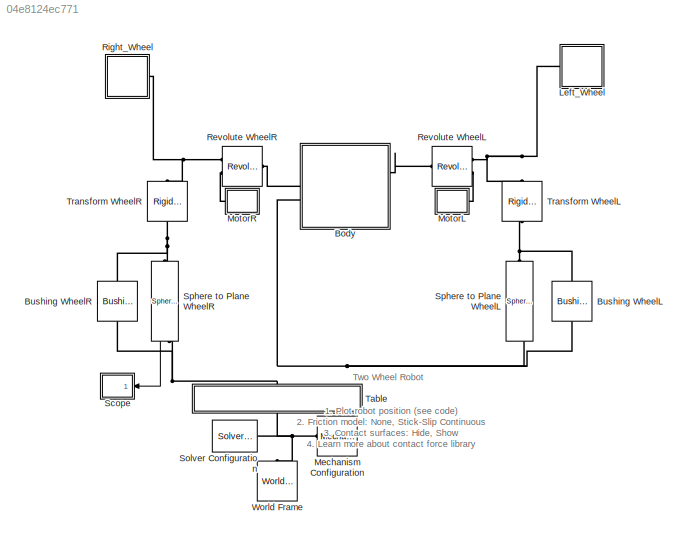
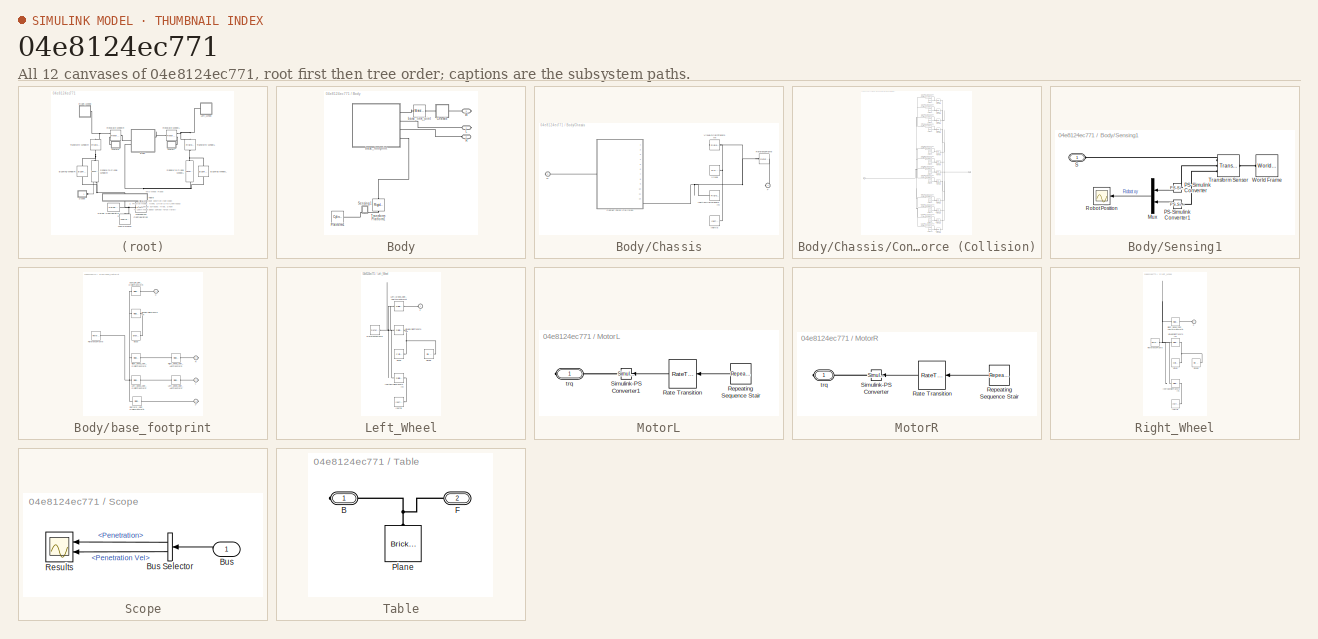
[diagram: thumbnail index - all 12 canvases of the model, root first then tree order]
MODEL slx_04e8124ec771
KIND model
CONFIG AbsTol = 1e-5
CONFIG EnableMultiTasking = on
CONFIG FixedStep = 1e-3
CONFIG MaxStep = 0.01
CONFIG MinStep = auto
CONFIG RelTol = 1e-4
CONFIG SampleTimeConstraint = Unconstrained
CONFIG Solver = ode23t
CONFIG SolverName = ode23t
CONFIG StartFcn = tic;
CONFIG StartTime = 0.0
CONFIG StopFcn = Elapsed_Sim_Time = toc;\ndisp(['Elapsed Sim Time = ' num2str(Elapsed_Sim_Time)]);\n
CONFIG StopTime = 13
WORKSPACE source: MATLAB code (in-file)
WORKSPACE code: whl.rad = 0.025;
WORKSPACE code: whl.thickness = 0.005;
WORKSPACE code: axle.length = 0.2;
WORKSPACE code: axle.radius = 0.005;
WORKSPACE code: platform.radius = 0.15;
WORKSPACE code: platform.thickness = 0.005;
WORKSPACE code: platform.offset = -0.01;
WORKSPACE code: bumper.rad = platform.offset+whl.rad;
WORKSPACE code: table.length = 1;
WORKSPACE code: table.thickness = 0.01;
WORKSPACE code: tableWhl.contact.k = 1e3;
WORKSPACE code: tableWhl.contact.b = 1e2;
WORKSPACE code: steel.density = 8000; %kg/m^3
WORKSPACE code: start_pos.x = -0.2;
WORKSPACE code: start_pos.y = 0.2;
WORKSPACE l_whl_trq = [0 0 0 0.5 0 0 0 -0.5 1.0 0 0 0 -1.0 0.5 0 0 0 -0.5 -1.5 0 0 0 1.5].'*0.0005
WORKSPACE r_whl_trq = [0 0 0 2.0 0 0 0 -2.0 1.0 0 0 0 -1.0 1.0 0 0 0 -1.0 -1.5 0 0 0 1.5].'*0.0005
BLOCK [SubSystem] Body
  PortSchema = {"entries":[{"content":{"sides":[{"content":{"connectorIds":["LConn1"]},"type":"ConnectorPlacement.EquallySpacedRectSide","uuid":"fa89fc61-4746-4874-a10e-0f1ff4eac7ad"},{"content":{"connectorIds":["RConn1"],"side":"RIGHT"},"type":"ConnectorPlacement.EquallySpacedRectSide","uuid":"79f4ddb8-3849-4594-b888-ec6795b585fc"},{"content":{"connectorIds":[],"side":"TOP"},"type":"ConnectorPlacement.EquallySp...<+399ch>
  Ports = [0, 0, 0, 0, 0, 1, 2]
  RequestExecContextInheritance = off
  Tag = CustomStyle
BLOCK [SubSystem] Body/Chassis
  Ports = [0, 0, 0, 0, 0, 1, 1]
  RequestExecContextInheritance = off
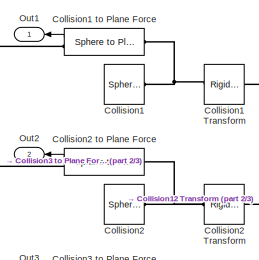
[diagram: Body/Chassis/Contact Force (Collision) - part 1/3, top center region]
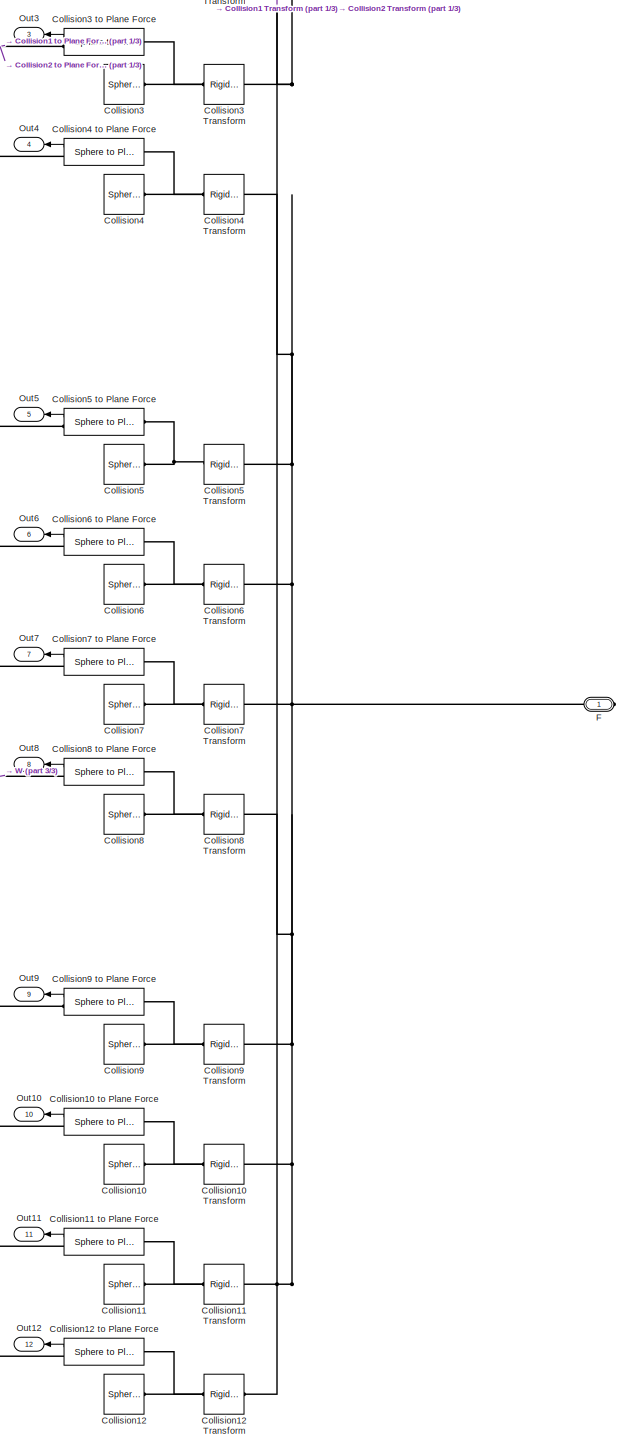
[diagram: Body/Chassis/Contact Force (Collision) - part 2/3, right side, full height]
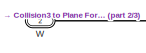
[diagram: Body/Chassis/Contact Force (Collision) - part 3/3, middle left region]
BLOCK [SubSystem] Body/Chassis/Contact Force (Collision)
  Ports = [0, 12, 0, 0, 0, 1, 1]
  RequestExecContextInheritance = off
BLOCK [Reference] Body/Chassis/Contact Force (Collision)/Collision1  REF=sm_lib/Body Elements/Spherical Solid
  NameLocation = left
  Ports = [0, 0, 0, 0, 0, 0, 1]
  SourceBlock = sm_lib/Body Elements/Spherical Solid
  SourceProductBaseCode = MS
  SourceType = Spherical Solid
BLOCK [Reference] Body/Chassis/Contact Force (Collision)/Collision1 Transform  REF=sm_lib/Frames and
Transforms/Rigid
Transform
  NameLocation = top
  Ports = [0, 0, 0, 0, 0, 1, 1]
  SourceBlock = sm_lib/Frames and\nTransforms/Rigid\nTransform
  SourceProductBaseCode = MS
  SourceType = Rigid\nTransform
BLOCK [Reference] Body/Chassis/Contact Force (Collision)/Collision1 to Plane Force  REF=Contact_Forces_Lib/3D/Sphere to Plane Force
  NameLocation = left
  Ports = [0, 1, 0, 0, 0, 1, 1]
  SourceBlock = Contact_Forces_Lib/3D/Sphere to Plane Force
  SourceProductName = Simscape Multibody Contact Forces Library
  SourceType = Sphere to Plane Force
BLOCK [Reference] Body/Chassis/Contact Force (Collision)/Collision10  REF=sm_lib/Body Elements/Spherical Solid
  NameLocation = left
  Ports = [0, 0, 0, 0, 0, 0, 1]
  SourceBlock = sm_lib/Body Elements/Spherical Solid
  SourceProductBaseCode = MS
  SourceType = Spherical Solid
BLOCK [Reference] Body/Chassis/Contact Force (Collision)/Collision10 Transform  REF=sm_lib/Frames and
Transforms/Rigid
Transform
  NameLocation = top
  Ports = [0, 0, 0, 0, 0, 1, 1]
  SourceBlock = sm_lib/Frames and\nTransforms/Rigid\nTransform
  SourceProductBaseCode = MS
  SourceType = Rigid\nTransform
BLOCK [Reference] Body/Chassis/Contact Force (Collision)/Collision10 to Plane Force  REF=Contact_Forces_Lib/3D/Sphere to Plane Force
  NameLocation = left
  Ports = [0, 1, 0, 0, 0, 1, 1]
  SourceBlock = Contact_Forces_Lib/3D/Sphere to Plane Force
  SourceProductName = Simscape Multibody Contact Forces Library
  SourceType = Sphere to Plane Force
BLOCK [Reference] Body/Chassis/Contact Force (Collision)/Collision11  REF=sm_lib/Body Elements/Spherical Solid
  NameLocation = left
  Ports = [0, 0, 0, 0, 0, 0, 1]
  SourceBlock = sm_lib/Body Elements/Spherical Solid
  SourceProductBaseCode = MS
  SourceType = Spherical Solid
BLOCK [Reference] Body/Chassis/Contact Force (Collision)/Collision11 Transform  REF=sm_lib/Frames and
Transforms/Rigid
Transform
  NameLocation = top
  Ports = [0, 0, 0, 0, 0, 1, 1]
  SourceBlock = sm_lib/Frames and\nTransforms/Rigid\nTransform
  SourceProductBaseCode = MS
  SourceType = Rigid\nTransform
BLOCK [Reference] Body/Chassis/Contact Force (Collision)/Collision11 to Plane Force  REF=Contact_Forces_Lib/3D/Sphere to Plane Force
  NameLocation = left
  Ports = [0, 1, 0, 0, 0, 1, 1]
  SourceBlock = Contact_Forces_Lib/3D/Sphere to Plane Force
  SourceProductName = Simscape Multibody Contact Forces Library
  SourceType = Sphere to Plane Force
BLOCK [Reference] Body/Chassis/Contact Force (Collision)/Collision12  REF=sm_lib/Body Elements/Spherical Solid
  NameLocation = left
  Ports = [0, 0, 0, 0, 0, 0, 1]
  SourceBlock = sm_lib/Body Elements/Spherical Solid
  SourceProductBaseCode = MS
  SourceType = Spherical Solid
BLOCK [Reference] Body/Chassis/Contact Force (Collision)/Collision12 Transform  REF=sm_lib/Frames and
Transforms/Rigid
Transform
  NameLocation = top
  Ports = [0, 0, 0, 0, 0, 1, 1]
  SourceBlock = sm_lib/Frames and\nTransforms/Rigid\nTransform
  SourceProductBaseCode = MS
  SourceType = Rigid\nTransform
BLOCK [Reference] Body/Chassis/Contact Force (Collision)/Collision12 to Plane Force  REF=Contact_Forces_Lib/3D/Sphere to Plane Force
  NameLocation = left
  Ports = [0, 1, 0, 0, 0, 1, 1]
  SourceBlock = Contact_Forces_Lib/3D/Sphere to Plane Force
  SourceProductName = Simscape Multibody Contact Forces Library
  SourceType = Sphere to Plane Force
BLOCK [Reference] Body/Chassis/Contact Force (Collision)/Collision2  REF=sm_lib/Body Elements/Spherical Solid
  NameLocation = left
  Ports = [0, 0, 0, 0, 0, 0, 1]
  SourceBlock = sm_lib/Body Elements/Spherical Solid
  SourceProductBaseCode = MS
  SourceType = Spherical Solid
BLOCK [Reference] Body/Chassis/Contact Force (Collision)/Collision2 Transform  REF=sm_lib/Frames and
Transforms/Rigid
Transform
  NameLocation = top
  Ports = [0, 0, 0, 0, 0, 1, 1]
  SourceBlock = sm_lib/Frames and\nTransforms/Rigid\nTransform
  SourceProductBaseCode = MS
  SourceType = Rigid\nTransform
BLOCK [Reference] Body/Chassis/Contact Force (Collision)/Collision2 to Plane Force  REF=Contact_Forces_Lib/3D/Sphere to Plane Force
  NameLocation = left
  Ports = [0, 1, 0, 0, 0, 1, 1]
  SourceBlock = Contact_Forces_Lib/3D/Sphere to Plane Force
  SourceProductName = Simscape Multibody Contact Forces Library
  SourceType = Sphere to Plane Force
BLOCK [Reference] Body/Chassis/Contact Force (Collision)/Collision3  REF=sm_lib/Body Elements/Spherical Solid
  NameLocation = left
  Ports = [0, 0, 0, 0, 0, 0, 1]
  SourceBlock = sm_lib/Body Elements/Spherical Solid
  SourceProductBaseCode = MS
  SourceType = Spherical Solid
BLOCK [Reference] Body/Chassis/Contact Force (Collision)/Collision3 Transform  REF=sm_lib/Frames and
Transforms/Rigid
Transform
  NameLocation = top
  Ports = [0, 0, 0, 0, 0, 1, 1]
  SourceBlock = sm_lib/Frames and\nTransforms/Rigid\nTransform
  SourceProductBaseCode = MS
  SourceType = Rigid\nTransform
BLOCK [Reference] Body/Chassis/Contact Force (Collision)/Collision3 to Plane Force  REF=Contact_Forces_Lib/3D/Sphere to Plane Force
  NameLocation = left
  Ports = [0, 1, 0, 0, 0, 1, 1]
  SourceBlock = Contact_Forces_Lib/3D/Sphere to Plane Force
  SourceProductName = Simscape Multibody Contact Forces Library
  SourceType = Sphere to Plane Force
BLOCK [Reference] Body/Chassis/Contact Force (Collision)/Collision4  REF=sm_lib/Body Elements/Spherical Solid
  NameLocation = left
  Ports = [0, 0, 0, 0, 0, 0, 1]
  SourceBlock = sm_lib/Body Elements/Spherical Solid
  SourceProductBaseCode = MS
  SourceType = Spherical Solid
BLOCK [Reference] Body/Chassis/Contact Force (Collision)/Collision4 Transform  REF=sm_lib/Frames and
Transforms/Rigid
Transform
  NameLocation = top
  Ports = [0, 0, 0, 0, 0, 1, 1]
  SourceBlock = sm_lib/Frames and\nTransforms/Rigid\nTransform
  SourceProductBaseCode = MS
  SourceType = Rigid\nTransform
BLOCK [Reference] Body/Chassis/Contact Force (Collision)/Collision4 to Plane Force  REF=Contact_Forces_Lib/3D/Sphere to Plane Force
  NameLocation = left
  Ports = [0, 1, 0, 0, 0, 1, 1]
  SourceBlock = Contact_Forces_Lib/3D/Sphere to Plane Force
  SourceProductName = Simscape Multibody Contact Forces Library
  SourceType = Sphere to Plane Force
BLOCK [Reference] Body/Chassis/Contact Force (Collision)/Collision5  REF=sm_lib/Body Elements/Spherical Solid
  NameLocation = left
  Ports = [0, 0, 0, 0, 0, 0, 1]
  SourceBlock = sm_lib/Body Elements/Spherical Solid
  SourceProductBaseCode = MS
  SourceType = Spherical Solid
BLOCK [Reference] Body/Chassis/Contact Force (Collision)/Collision5 Transform  REF=sm_lib/Frames and
Transforms/Rigid
Transform
  NameLocation = top
  Ports = [0, 0, 0, 0, 0, 1, 1]
  SourceBlock = sm_lib/Frames and\nTransforms/Rigid\nTransform
  SourceProductBaseCode = MS
  SourceType = Rigid\nTransform
BLOCK [Reference] Body/Chassis/Contact Force (Collision)/Collision5 to Plane Force  REF=Contact_Forces_Lib/3D/Sphere to Plane Force
  NameLocation = left
  Ports = [0, 1, 0, 0, 0, 1, 1]
  SourceBlock = Contact_Forces_Lib/3D/Sphere to Plane Force
  SourceProductName = Simscape Multibody Contact Forces Library
  SourceType = Sphere to Plane Force
BLOCK [Reference] Body/Chassis/Contact Force (Collision)/Collision6  REF=sm_lib/Body Elements/Spherical Solid
  NameLocation = left
  Ports = [0, 0, 0, 0, 0, 0, 1]
  SourceBlock = sm_lib/Body Elements/Spherical Solid
  SourceProductBaseCode = MS
  SourceType = Spherical Solid
BLOCK [Reference] Body/Chassis/Contact Force (Collision)/Collision6 Transform  REF=sm_lib/Frames and
Transforms/Rigid
Transform
  NameLocation = top
  Ports = [0, 0, 0, 0, 0, 1, 1]
  SourceBlock = sm_lib/Frames and\nTransforms/Rigid\nTransform
  SourceProductBaseCode = MS
  SourceType = Rigid\nTransform
BLOCK [Reference] Body/Chassis/Contact Force (Collision)/Collision6 to Plane Force  REF=Contact_Forces_Lib/3D/Sphere to Plane Force
  NameLocation = left
  Ports = [0, 1, 0, 0, 0, 1, 1]
  SourceBlock = Contact_Forces_Lib/3D/Sphere to Plane Force
  SourceProductName = Simscape Multibody Contact Forces Library
  SourceType = Sphere to Plane Force
BLOCK [Reference] Body/Chassis/Contact Force (Collision)/Collision7  REF=sm_lib/Body Elements/Spherical Solid
  NameLocation = left
  Ports = [0, 0, 0, 0, 0, 0, 1]
  SourceBlock = sm_lib/Body Elements/Spherical Solid
  SourceProductBaseCode = MS
  SourceType = Spherical Solid
BLOCK [Reference] Body/Chassis/Contact Force (Collision)/Collision7 Transform  REF=sm_lib/Frames and
Transforms/Rigid
Transform
  NameLocation = top
  Ports = [0, 0, 0, 0, 0, 1, 1]
  SourceBlock = sm_lib/Frames and\nTransforms/Rigid\nTransform
  SourceProductBaseCode = MS
  SourceType = Rigid\nTransform
BLOCK [Reference] Body/Chassis/Contact Force (Collision)/Collision7 to Plane Force  REF=Contact_Forces_Lib/3D/Sphere to Plane Force
  NameLocation = left
  Ports = [0, 1, 0, 0, 0, 1, 1]
  SourceBlock = Contact_Forces_Lib/3D/Sphere to Plane Force
  SourceProductName = Simscape Multibody Contact Forces Library
  SourceType = Sphere to Plane Force
BLOCK [Reference] Body/Chassis/Contact Force (Collision)/Collision8  REF=sm_lib/Body Elements/Spherical Solid
  NameLocation = left
  Ports = [0, 0, 0, 0, 0, 0, 1]
  SourceBlock = sm_lib/Body Elements/Spherical Solid
  SourceProductBaseCode = MS
  SourceType = Spherical Solid
BLOCK [Reference] Body/Chassis/Contact Force (Collision)/Collision8 Transform  REF=sm_lib/Frames and
Transforms/Rigid
Transform
  NameLocation = top
  Ports = [0, 0, 0, 0, 0, 1, 1]
  SourceBlock = sm_lib/Frames and\nTransforms/Rigid\nTransform
  SourceProductBaseCode = MS
  SourceType = Rigid\nTransform
BLOCK [Reference] Body/Chassis/Contact Force (Collision)/Collision8 to Plane Force  REF=Contact_Forces_Lib/3D/Sphere to Plane Force
  NameLocation = left
  Ports = [0, 1, 0, 0, 0, 1, 1]
  SourceBlock = Contact_Forces_Lib/3D/Sphere to Plane Force
  SourceProductName = Simscape Multibody Contact Forces Library
  SourceType = Sphere to Plane Force
BLOCK [Reference] Body/Chassis/Contact Force (Collision)/Collision9  REF=sm_lib/Body Elements/Spherical Solid
  NameLocation = left
  Ports = [0, 0, 0, 0, 0, 0, 1]
  SourceBlock = sm_lib/Body Elements/Spherical Solid
  SourceProductBaseCode = MS
  SourceType = Spherical Solid
BLOCK [Reference] Body/Chassis/Contact Force (Collision)/Collision9 Transform  REF=sm_lib/Frames and
Transforms/Rigid
Transform
  NameLocation = top
  Ports = [0, 0, 0, 0, 0, 1, 1]
  SourceBlock = sm_lib/Frames and\nTransforms/Rigid\nTransform
  SourceProductBaseCode = MS
  SourceType = Rigid\nTransform
BLOCK [Reference] Body/Chassis/Contact Force (Collision)/Collision9 to Plane Force  REF=Contact_Forces_Lib/3D/Sphere to Plane Force
  NameLocation = left
  Ports = [0, 1, 0, 0, 0, 1, 1]
  SourceBlock = Contact_Forces_Lib/3D/Sphere to Plane Force
  SourceProductName = Simscape Multibody Contact Forces Library
  SourceType = Sphere to Plane Force
BLOCK [PMIOPort] Body/Chassis/Contact Force (Collision)/F
  Side = Right
BLOCK [Outport] Body/Chassis/Contact Force (Collision)/Out1
BLOCK [Outport] Body/Chassis/Contact Force (Collision)/Out10
  Port = 10
BLOCK [Outport] Body/Chassis/Contact Force (Collision)/Out11
  Port = 11
BLOCK [Outport] Body/Chassis/Contact Force (Collision)/Out12
  Port = 12
BLOCK [Outport] Body/Chassis/Contact Force (Collision)/Out2
  Port = 2
BLOCK [Outport] Body/Chassis/Contact Force (Collision)/Out3
  Port = 3
BLOCK [Outport] Body/Chassis/Contact Force (Collision)/Out4
  Port = 4
BLOCK [Outport] Body/Chassis/Contact Force (Collision)/Out5
  Port = 5
BLOCK [Outport] Body/Chassis/Contact Force (Collision)/Out6
  Port = 6
BLOCK [Outport] Body/Chassis/Contact Force (Collision)/Out7
  Port = 7
BLOCK [Outport] Body/Chassis/Contact Force (Collision)/Out8
  Port = 8
BLOCK [Outport] Body/Chassis/Contact Force (Collision)/Out9
  Port = 9
BLOCK [PMIOPort] Body/Chassis/Contact Force (Collision)/W
  Port = 2
  Side = Left
BLOCK [PMIOPort] Body/Chassis/F
  NameLocation = top
  Side = Left
BLOCK [Reference] Body/Chassis/Inertia  REF=sm_lib/Body Elements/Inertia
  Ports = [0, 0, 0, 0, 0, 0, 1]
  SourceBlock = sm_lib/Body Elements/Inertia
  SourceProductBaseCode = MS
  SourceType = Inertia
BLOCK [Reference] Body/Chassis/InertiaOriginTransform  REF=sm_lib/Frames and
Transforms/Rigid
Transform
  Commented = on
  Ports = [0, 0, 0, 0, 0, 1, 1]
  SourceBlock = sm_lib/Frames and\nTransforms/Rigid\nTransform
  SourceProductBaseCode = MS
  SourceType = Rigid\nTransform
BLOCK [Reference] Body/Chassis/ReferenceFrame  REF=sm_lib/Frames and
Transforms/Reference
Frame
  NameLocation = top
  Ports = [0, 0, 0, 0, 0, 0, 1]
  SourceBlock = sm_lib/Frames and\nTransforms/Reference\nFrame
  SourceProductBaseCode = MS
  SourceType = Reference\nFrame
BLOCK [Reference] Body/Chassis/Visual  REF=sm_lib/Body Elements/File Solid
  Ports = [0, 0, 0, 0, 0, 0, 1]
  SourceBlock = sm_lib/Body Elements/File Solid
  SourceProductBaseCode = MS
  SourceType = File Solid
BLOCK [Reference] Body/Chassis/VisualOriginTransform  REF=sm_lib/Frames and
Transforms/Rigid
Transform
  Ports = [0, 0, 0, 0, 0, 1, 1]
  SourceBlock = sm_lib/Frames and\nTransforms/Rigid\nTransform
  SourceProductBaseCode = MS
  SourceType = Rigid\nTransform
BLOCK [PMIOPort] Body/Chassis/W
  Port = 2
  Side = Right
BLOCK [PMIOPort] Body/L
  NameLocation = top
  Side = Right
BLOCK [Reference] Body/Platform1  REF=sm_lib/Body Elements/Cylindrical Solid
  Commented = on
  Ports = [0, 0, 0, 0, 0, 0, 1]
  SourceBlock = sm_lib/Body Elements/Cylindrical Solid
  SourceProductBaseCode = MS
  SourceType = Cylindrical Solid
BLOCK [PMIOPort] Body/R
  Port = 2
  Side = Left
BLOCK [SubSystem] Body/Sensing1
  Commented = on
  NameLocation = left
  Ports = [0, 0, 0, 0, 0, 1]
  RequestExecContextInheritance = off
BLOCK [Mux] Body/Sensing1/Mux
  DisplayOption = bar
  Inputs = 2
  NameLocation = top
  Ports = [2, 1]
BLOCK [Reference] Body/Sensing1/PS-Simulink Converter  REF=nesl_utility/PS-Simulink
Converter
  NameLocation = top
  Ports = [0, 1, 0, 0, 0, 1]
  SourceBlock = nesl_utility/PS-Simulink\nConverter
  SourceProductBaseCode = SS
  SourceType = PS-Simulink\nConverter
BLOCK [Reference] Body/Sensing1/PS-Simulink Converter1  REF=nesl_utility/PS-Simulink
Converter
  NameLocation = top
  Ports = [0, 1, 0, 0, 0, 1]
  SourceBlock = nesl_utility/PS-Simulink\nConverter
  SourceProductBaseCode = SS
  SourceType = PS-Simulink\nConverter
BLOCK [Scope] Body/Sensing1/Robot Position
  Floating = off
  NumInputPorts = 1
  Ports = [1]
  ScopeSpecificationString = C++SS(StrPVP('Location','[691, 76, 1015, 315]'),StrPVP('Open','off'),MxPVP('AxesTitles',54,'struct(''axes1'',''%<SignalLabel>'')'),MxPVP('ScopeGraphics',57,'struct(''FigureColor'',''[0.501960784313725 0.501960784313725 0.501960784313725]'',''AxesColor'',''[0 0 0]'',''AxesTickColor'',''[1 1 1]'',''LineColors'',''[1 1 0;1 0 1;0 1 1;1 0 0;0 1 0;0 0 1]'',''LineStyles'',''-|-|-|-|-|-'',''LineWidths'','...<+318ch>
BLOCK [PMIOPort] Body/Sensing1/S
  Side = Left
BLOCK [Reference] Body/Sensing1/Transform Sensor  REF=sm_lib/Frames and
Transforms/Transform
Sensor
  Ports = [0, 0, 0, 0, 0, 1, 3]
  SourceBlock = sm_lib/Frames and\nTransforms/Transform\nSensor
  SourceProductBaseCode = MS
  SourceType = Transform\nSensor
BLOCK [Reference] Body/Sensing1/World Frame  REF=sm_lib/Frames and
Transforms/World Frame
  NameLocation = top
  Ports = [0, 0, 0, 0, 0, 0, 1]
  SourceBlock = sm_lib/Frames and\nTransforms/World Frame
  SourceProductBaseCode = MS
  SourceType = World Frame
BLOCK [Reference] Body/Transform Platform1  REF=sm_lib/Frames and
Transforms/Rigid
Transform
  Commented = on
  NameLocation = right
  Ports = [0, 0, 0, 0, 0, 1, 1]
  SourceBlock = sm_lib/Frames and\nTransforms/Rigid\nTransform
  SourceProductBaseCode = MS
  SourceType = Rigid\nTransform
BLOCK [PMIOPort] Body/W
  Port = 3
  Side = Right
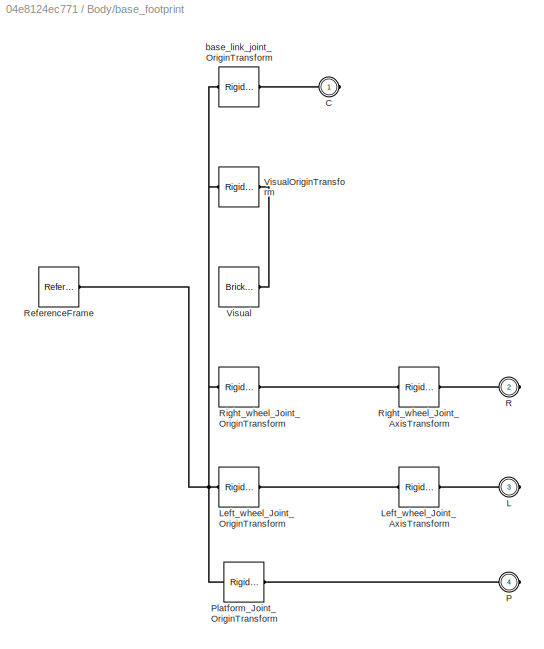
BLOCK [SubSystem] Body/base_footprint
  Ports = [0, 0, 0, 0, 0, 0, 4]
  RequestExecContextInheritance = off
BLOCK [PMIOPort] Body/base_footprint/C
  Side = Right
BLOCK [PMIOPort] Body/base_footprint/L
  Port = 3
  Side = Right
BLOCK [Reference] Body/base_footprint/Left_wheel_Joint_AxisTransform  REF=sm_lib/Frames and
Transforms/Rigid
Transform
  Ports = [0, 0, 0, 0, 0, 1, 1]
  SourceBlock = sm_lib/Frames and\nTransforms/Rigid\nTransform
  SourceProductBaseCode = MS
  SourceType = Rigid\nTransform
BLOCK [Reference] Body/base_footprint/Left_wheel_Joint_OriginTransform  REF=sm_lib/Frames and
Transforms/Rigid
Transform
  Ports = [0, 0, 0, 0, 0, 1, 1]
  SourceBlock = sm_lib/Frames and\nTransforms/Rigid\nTransform
  SourceProductBaseCode = MS
  SourceType = Rigid\nTransform
BLOCK [PMIOPort] Body/base_footprint/P
  Port = 4
  Side = Right
BLOCK [Reference] Body/base_footprint/Platform_Joint_OriginTransform  REF=sm_lib/Frames and
Transforms/Rigid
Transform
  Ports = [0, 0, 0, 0, 0, 1, 1]
  SourceBlock = sm_lib/Frames and\nTransforms/Rigid\nTransform
  SourceProductBaseCode = MS
  SourceType = Rigid\nTransform
BLOCK [PMIOPort] Body/base_footprint/R
  Port = 2
  Side = Right
BLOCK [Reference] Body/base_footprint/ReferenceFrame  REF=sm_lib/Frames and
Transforms/Reference
Frame
  Ports = [0, 0, 0, 0, 0, 0, 1]
  SourceBlock = sm_lib/Frames and\nTransforms/Reference\nFrame
  SourceProductBaseCode = MS
  SourceType = Reference\nFrame
BLOCK [Reference] Body/base_footprint/Right_wheel_Joint_AxisTransform  REF=sm_lib/Frames and
Transforms/Rigid
Transform
  Ports = [0, 0, 0, 0, 0, 1, 1]
  SourceBlock = sm_lib/Frames and\nTransforms/Rigid\nTransform
  SourceProductBaseCode = MS
  SourceType = Rigid\nTransform
BLOCK [Reference] Body/base_footprint/Right_wheel_Joint_OriginTransform  REF=sm_lib/Frames and
Transforms/Rigid
Transform
  Ports = [0, 0, 0, 0, 0, 1, 1]
  SourceBlock = sm_lib/Frames and\nTransforms/Rigid\nTransform
  SourceProductBaseCode = MS
  SourceType = Rigid\nTransform
BLOCK [Reference] Body/base_footprint/Visual  REF=sm_lib/Body Elements/Brick Solid
  Ports = [0, 0, 0, 0, 0, 0, 1]
  SourceBlock = sm_lib/Body Elements/Brick Solid
  SourceProductBaseCode = MS
  SourceType = Brick Solid
BLOCK [Reference] Body/base_footprint/VisualOriginTransform  REF=sm_lib/Frames and
Transforms/Rigid
Transform
  Ports = [0, 0, 0, 0, 0, 1, 1]
  SourceBlock = sm_lib/Frames and\nTransforms/Rigid\nTransform
  SourceProductBaseCode = MS
  SourceType = Rigid\nTransform
BLOCK [Reference] Body/base_footprint/base_link_joint_OriginTransform  REF=sm_lib/Frames and
Transforms/Rigid
Transform
  Ports = [0, 0, 0, 0, 0, 1, 1]
  SourceBlock = sm_lib/Frames and\nTransforms/Rigid\nTransform
  SourceProductBaseCode = MS
  SourceType = Rigid\nTransform
BLOCK [Reference] Body/base_link_joint  REF=sm_lib/Joints/Weld Joint
  Ports = [0, 0, 0, 0, 0, 1, 1]
  SourceBlock = sm_lib/Joints/Weld Joint
  SourceProductBaseCode = MS
  SourceType = Weld Joint
BLOCK [Reference] Bushing WheelL  REF=sm_lib/Joints/Bushing Joint
  NameLocation = right
  Ports = [0, 0, 0, 0, 0, 1, 1]
  SourceBlock = sm_lib/Joints/Bushing Joint
  SourceProductBaseCode = MS
  SourceType = Bushing Joint
BLOCK [Reference] Bushing WheelR  REF=sm_lib/Joints/Bushing Joint
  NameLocation = left
  Ports = [0, 0, 0, 0, 0, 1, 1]
  SourceBlock = sm_lib/Joints/Bushing Joint
  SourceProductBaseCode = MS
  SourceType = Bushing Joint
BLOCK [SubSystem] Left_Wheel
  Ports = [0, 0, 0, 0, 0, 1]
  RequestExecContextInheritance = off
BLOCK [PMIOPort] Left_Wheel/F
  Side = Left
BLOCK [Reference] Left_Wheel/Inertia  REF=sm_lib/Body Elements/Inertia
  Ports = [0, 0, 0, 0, 0, 0, 1]
  SourceBlock = sm_lib/Body Elements/Inertia
  SourceProductBaseCode = MS
  SourceType = Inertia
BLOCK [Reference] Left_Wheel/InertiaOriginTransform  REF=sm_lib/Frames and
Transforms/Rigid
Transform
  Ports = [0, 0, 0, 0, 0, 1, 1]
  SourceBlock = sm_lib/Frames and\nTransforms/Rigid\nTransform
  SourceProductBaseCode = MS
  SourceType = Rigid\nTransform
BLOCK [Reference] Left_Wheel/Left_wheel_Joint_AxisInvTransform  REF=sm_lib/Frames and
Transforms/Rigid
Transform
  Ports = [0, 0, 0, 0, 0, 1, 1]
  SourceBlock = sm_lib/Frames and\nTransforms/Rigid\nTransform
  SourceProductBaseCode = MS
  SourceType = Rigid\nTransform
BLOCK [Reference] Left_Wheel/ReferenceFrame  REF=sm_lib/Frames and
Transforms/Reference
Frame
  Ports = [0, 0, 0, 0, 0, 0, 1]
  SourceBlock = sm_lib/Frames and\nTransforms/Reference\nFrame
  SourceProductBaseCode = MS
  SourceType = Reference\nFrame
BLOCK [Reference] Left_Wheel/Visual  REF=sm_lib/Body Elements/Cylindrical Solid
  Ports = [0, 0, 0, 0, 0, 0, 1]
  SourceBlock = sm_lib/Body Elements/Cylindrical Solid
  SourceProductBaseCode = MS
  SourceType = Cylindrical Solid
BLOCK [Reference] Left_Wheel/Visual1  REF=sm_lib/Body Elements/File Solid
  Commented = on
  Ports = [0, 0, 0, 0, 0, 0, 1]
  SourceBlock = sm_lib/Body Elements/File Solid
  SourceProductBaseCode = MS
  SourceType = File Solid
BLOCK [Reference] Left_Wheel/VisualOriginTransform  REF=sm_lib/Frames and
Transforms/Rigid
Transform
  Ports = [0, 0, 0, 0, 0, 1, 1]
  SourceBlock = sm_lib/Frames and\nTransforms/Rigid\nTransform
  SourceProductBaseCode = MS
  SourceType = Rigid\nTransform
BLOCK [Reference] Mechanism Configuration  REF=sm_lib/Utilities/Mechanism
Configuration
  Ports = [0, 0, 0, 0, 0, 0, 1]
  SourceBlock = sm_lib/Utilities/Mechanism\nConfiguration
  SourceProductBaseCode = MS
  SourceType = Mechanism\nConfiguration
BLOCK [SubSystem] MotorL
  Ports = [0, 0, 0, 0, 0, 0, 1]
  RequestExecContextInheritance = off
BLOCK [RateTransition] MotorL/Rate Transition
BLOCK [Reference] MotorL/Repeating Sequence Stair  REF=simulink/Sources/Repeating
Sequence
Stair
  Ports = [0, 1]
  SourceBlock = simulink/Sources/Repeating\nSequence\nStair
  SourceProductBaseCode = SL
  SourceType = Repeating Sequence Stair
BLOCK [Reference] MotorL/Simulink-PS Converter1  REF=nesl_utility/Simulink-PS
Converter
  Ports = [1, 0, 0, 0, 0, 0, 1]
  SourceBlock = nesl_utility/Simulink-PS\nConverter
  SourceProductBaseCode = SS
  SourceType = Simulink-PS\nConverter
BLOCK [PMIOPort] MotorL/trq
  NameLocation = top
  Side = Right
BLOCK [SubSystem] MotorR
  Ports = [0, 0, 0, 0, 0, 0, 1]
  RequestExecContextInheritance = off
BLOCK [RateTransition] MotorR/Rate Transition
BLOCK [Reference] MotorR/Repeating Sequence Stair  REF=simulink/Sources/Repeating
Sequence
Stair
  Ports = [0, 1]
  SourceBlock = simulink/Sources/Repeating\nSequence\nStair
  SourceProductBaseCode = SL
  SourceType = Repeating Sequence Stair
BLOCK [Reference] MotorR/Simulink-PS Converter  REF=nesl_utility/Simulink-PS
Converter
  Ports = [1, 0, 0, 0, 0, 0, 1]
  SourceBlock = nesl_utility/Simulink-PS\nConverter
  SourceProductBaseCode = SS
  SourceType = Simulink-PS\nConverter
BLOCK [PMIOPort] MotorR/trq
  NameLocation = top
  Side = Right
BLOCK [Reference] Revolute WheelL  REF=sm_lib/Joints/Revolute Joint
  NameLocation = top
  Ports = [0, 0, 0, 0, 0, 2, 1]
  SourceBlock = sm_lib/Joints/Revolute Joint
  SourceProductBaseCode = MS
  SourceType = Revolute Joint
BLOCK [Reference] Revolute WheelR  REF=sm_lib/Joints/Revolute Joint
  NameLocation = top
  Ports = [0, 0, 0, 0, 0, 2, 1]
  SourceBlock = sm_lib/Joints/Revolute Joint
  SourceProductBaseCode = MS
  SourceType = Revolute Joint
BLOCK [SubSystem] Right_Wheel
  NameLocation = top
  Ports = [0, 0, 0, 0, 0, 1]
  RequestExecContextInheritance = off
BLOCK [PMIOPort] Right_Wheel/F
  Side = Left
BLOCK [Reference] Right_Wheel/Inertia  REF=sm_lib/Body Elements/Inertia
  Ports = [0, 0, 0, 0, 0, 0, 1]
  SourceBlock = sm_lib/Body Elements/Inertia
  SourceProductBaseCode = MS
  SourceType = Inertia
BLOCK [Reference] Right_Wheel/InertiaOriginTransform  REF=sm_lib/Frames and
Transforms/Rigid
Transform
  Ports = [0, 0, 0, 0, 0, 1, 1]
  SourceBlock = sm_lib/Frames and\nTransforms/Rigid\nTransform
  SourceProductBaseCode = MS
  SourceType = Rigid\nTransform
BLOCK [Reference] Right_Wheel/ReferenceFrame  REF=sm_lib/Frames and
Transforms/Reference
Frame
  Ports = [0, 0, 0, 0, 0, 0, 1]
  SourceBlock = sm_lib/Frames and\nTransforms/Reference\nFrame
  SourceProductBaseCode = MS
  SourceType = Reference\nFrame
BLOCK [Reference] Right_Wheel/Right_wheel_Joint_AxisInvTransform  REF=sm_lib/Frames and
Transforms/Rigid
Transform
  Ports = [0, 0, 0, 0, 0, 1, 1]
  SourceBlock = sm_lib/Frames and\nTransforms/Rigid\nTransform
  SourceProductBaseCode = MS
  SourceType = Rigid\nTransform
BLOCK [Reference] Right_Wheel/Visual  REF=sm_lib/Body Elements/Cylindrical Solid
  Ports = [0, 0, 0, 0, 0, 0, 1]
  SourceBlock = sm_lib/Body Elements/Cylindrical Solid
  SourceProductBaseCode = MS
  SourceType = Cylindrical Solid
BLOCK [Reference] Right_Wheel/Visual1  REF=sm_lib/Body Elements/File Solid
  Commented = on
  Ports = [0, 0, 0, 0, 0, 0, 1]
  SourceBlock = sm_lib/Body Elements/File Solid
  SourceProductBaseCode = MS
  SourceType = File Solid
BLOCK [Reference] Right_Wheel/VisualOriginTransform  REF=sm_lib/Frames and
Transforms/Rigid
Transform
  Ports = [0, 0, 0, 0, 0, 1, 1]
  SourceBlock = sm_lib/Frames and\nTransforms/Rigid\nTransform
  SourceProductBaseCode = MS
  SourceType = Rigid\nTransform
BLOCK [SubSystem] Scope
  Ports = [1]
  RequestExecContextInheritance = off
BLOCK [Inport] Scope/Bus
BLOCK [BusSelector] Scope/Bus Selector
  NameLocation = top
  OutputSignals = Penetration,Penetration Vel
  Ports = [1, 2]
BLOCK [Scope] Scope/Results
  Floating = off
  NameLocation = top
  NumInputPorts = 2
  Ports = [2]
  ScopeSpecificationString = C++SS(StrPVP('Location','[705, 570, 1029, 907]'),StrPVP('Open','off'),StrPVP('ZoomMode','yonly'),MxPVP('AxesTitles',54,'struct(''axes1'',''%<SignalLabel>'',''axes2'',''%<SignalLabel>'')'),MxPVP('ScopeGraphics',57,'struct(''FigureColor'',''[0.501960784313725 0.501960784313725 0.501960784313725]'',''AxesColor'',''[0 0 0]'',''AxesTickColor'',''[1 1 1]'',''LineColors'',''[1 1 0;1 0 1;0 1 1;1 0 0;0 1 0...<+422ch>
  Tag = PublishScope
BLOCK [Reference] Solver Configuration  REF=nesl_utility/Solver
Configuration
  Ports = [0, 0, 0, 0, 0, 0, 1]
  SourceBlock = nesl_utility/Solver\nConfiguration
  SourceProductBaseCode = SS
  SourceType = Solver\nConfiguration
BLOCK [Reference] Sphere to Plane WheelL  REF=Contact_Forces_Lib/3D/Sphere to Plane Force
  NameLocation = left
  Ports = [0, 1, 0, 0, 0, 1, 1]
  SourceBlock = Contact_Forces_Lib/3D/Sphere to Plane Force
  SourceProductName = Simscape Multibody Contact Forces Library
  SourceType = Sphere to Plane Force
BLOCK [Reference] Sphere to Plane WheelR  REF=Contact_Forces_Lib/3D/Sphere to Plane Force
  NameLocation = right
  Ports = [0, 1, 0, 0, 0, 1, 1]
  SourceBlock = Contact_Forces_Lib/3D/Sphere to Plane Force
  SourceProductName = Simscape Multibody Contact Forces Library
  SourceType = Sphere to Plane Force
BLOCK [SubSystem] Table
  NameLocation = left
  Ports = [0, 0, 0, 0, 0, 1, 1]
  RequestExecContextInheritance = off
  Tag = CustomStyle
BLOCK [PMIOPort] Table/B
  NameLocation = top
  Side = Right
BLOCK [PMIOPort] Table/F
  NameLocation = top
  Port = 2
  Side = Left
BLOCK [Reference] Table/Plane  REF=sm_lib/Body Elements/Brick Solid
  NameLocation = right
  Ports = [0, 0, 0, 0, 0, 0, 1]
  SourceBlock = sm_lib/Body Elements/Brick Solid
  SourceProductBaseCode = MS
  SourceType = Brick Solid
BLOCK [Reference] Transform WheelL  REF=sm_lib/Frames and
Transforms/Rigid
Transform
  NameLocation = right
  Ports = [0, 0, 0, 0, 0, 1, 1]
  SourceBlock = sm_lib/Frames and\nTransforms/Rigid\nTransform
  SourceProductBaseCode = MS
  SourceType = Rigid\nTransform
BLOCK [Reference] Transform WheelR  REF=sm_lib/Frames and
Transforms/Rigid
Transform
  NameLocation = left
  Ports = [0, 0, 0, 0, 0, 1, 1]
  SourceBlock = sm_lib/Frames and\nTransforms/Rigid\nTransform
  SourceProductBaseCode = MS
  SourceType = Rigid\nTransform
BLOCK [Reference] World Frame  REF=sm_lib/Frames and
Transforms/World Frame
  NameLocation = left
  Ports = [0, 0, 0, 0, 0, 0, 1]
  SourceBlock = sm_lib/Frames and\nTransforms/World Frame
  SourceProductBaseCode = MS
  SourceType = World Frame
ANNOTATION (root): 1. Plot robot position ( see code ) 2. Friction model: None , Stick-Slip Continuous 3. Contact surfaces: Hide , Show 4. Learn more about contact force library
ANNOTATION (root): Two Wheel Robot
LINE Body/Chassis/Contact Force (Collision)/Collision1 to Plane Force:1 -> Body/Chassis/Contact Force (Collision)/Out1:1
LINE Body/Chassis/Contact Force (Collision)/Collision10 to Plane Force:1 -> Body/Chassis/Contact Force (Collision)/Out10:1
LINE Body/Chassis/Contact Force (Collision)/Collision11 to Plane Force:1 -> Body/Chassis/Contact Force (Collision)/Out11:1
LINE Body/Chassis/Contact Force (Collision)/Collision12 to Plane Force:1 -> Body/Chassis/Contact Force (Collision)/Out12:1
LINE Body/Chassis/Contact Force (Collision)/Collision2 to Plane Force:1 -> Body/Chassis/Contact Force (Collision)/Out2:1
LINE Body/Chassis/Contact Force (Collision)/Collision3 to Plane Force:1 -> Body/Chassis/Contact Force (Collision)/Out3:1
LINE Body/Chassis/Contact Force (Collision)/Collision4 to Plane Force:1 -> Body/Chassis/Contact Force (Collision)/Out4:1
LINE Body/Chassis/Contact Force (Collision)/Collision5 to Plane Force:1 -> Body/Chassis/Contact Force (Collision)/Out5:1
LINE Body/Chassis/Contact Force (Collision)/Collision6 to Plane Force:1 -> Body/Chassis/Contact Force (Collision)/Out6:1
LINE Body/Chassis/Contact Force (Collision)/Collision7 to Plane Force:1 -> Body/Chassis/Contact Force (Collision)/Out7:1
LINE Body/Chassis/Contact Force (Collision)/Collision8 to Plane Force:1 -> Body/Chassis/Contact Force (Collision)/Out8:1
LINE Body/Chassis/Contact Force (Collision)/Collision9 to Plane Force:1 -> Body/Chassis/Contact Force (Collision)/Out9:1
LINE Body/Sensing1/Mux:1 -> Body/Sensing1/Robot Position:1
LINE Body/Sensing1/PS-Simulink Converter1:1 -> Body/Sensing1/Mux:2
LINE Body/Sensing1/PS-Simulink Converter:1 -> Body/Sensing1/Mux:1
LINE MotorL/Rate Transition:1 -> MotorL/Simulink-PS Converter1:1
LINE MotorL/Repeating Sequence Stair:1 -> MotorL/Rate Transition:1
LINE MotorR/Rate Transition:1 -> MotorR/Simulink-PS Converter:1
LINE MotorR/Repeating Sequence Stair:1 -> MotorR/Rate Transition:1
LINE Scope/Bus Selector:1 -> Scope/Results:1
LINE Scope/Bus Selector:2 -> Scope/Results:2
LINE Scope/Bus:1 -> Scope/Bus Selector:1
LINE Sphere to Plane WheelR:1 -> Scope:1
PNET net1: Body/Chassis/Contact Force (Collision)/Collision1 Transform:LConn1 -- Body/Chassis/Contact Force (Collision)/Collision10 Transform:LConn1 -- Body/Chassis/Contact Force (Collision)/Collision11 Transform:LConn1 -- Body/Chassis/Contact Force (Collision)/Collision12 Transform:LConn1 -- Body/Chassis/Contact Force (Collision)/Collision2 Transform:LConn1 -- Body/Chassis/Contact Force (Collision)/Collision3 Transform:LConn1 -- Body/Chassis/Contact Force (Collision)/Collision4 Transform:LConn1 -- Body/Chassis/Contact Force (Collision)/Collision5 Transform:LConn1 -- Body/Chassis/Contact Force (Collision)/Collision6 Transform:LConn1 -- Body/Chassis/Contact Force (Collision)/Collision7 Transform:LConn1 -- Body/Chassis/Contact Force (Collision)/Collision8 Transform:LConn1 -- Body/Chassis/Contact Force (Collision)/Collision9 Transform:LConn1 -- Body/Chassis/Contact Force (Collision)/F:RConn1
PNET net2: Body/Chassis/Contact Force (Collision)/Collision1 Transform:RConn1 -- Body/Chassis/Contact Force (Collision)/Collision1 to Plane Force:LConn1 -- Body/Chassis/Contact Force (Collision)/Collision1:RConn1
PNET net3: Body/Chassis/Contact Force (Collision)/Collision1 to Plane Force:RConn1 -- Body/Chassis/Contact Force (Collision)/Collision10 to Plane Force:RConn1 -- Body/Chassis/Contact Force (Collision)/Collision11 to Plane Force:RConn1 -- Body/Chassis/Contact Force (Collision)/Collision12 to Plane Force:RConn1 -- Body/Chassis/Contact Force (Collision)/Collision2 to Plane Force:RConn1 -- Body/Chassis/Contact Force (Collision)/Collision3 to Plane Force:RConn1 -- Body/Chassis/Contact Force (Collision)/Collision4 to Plane Force:RConn1 -- Body/Chassis/Contact Force (Collision)/Collision5 to Plane Force:RConn1 -- Body/Chassis/Contact Force (Collision)/Collision6 to Plane Force:RConn1 -- Body/Chassis/Contact Force (Collision)/Collision7 to Plane Force:RConn1 -- Body/Chassis/Contact Force (Collision)/Collision8 to Plane Force:RConn1 -- Body/Chassis/Contact Force (Collision)/Collision9 to Plane Force:RConn1 -- Body/Chassis/Contact Force (Collision)/W:RConn1
PNET net4: Body/Chassis/Contact Force (Collision)/Collision10 Transform:RConn1 -- Body/Chassis/Contact Force (Collision)/Collision10 to Plane Force:LConn1 -- Body/Chassis/Contact Force (Collision)/Collision10:RConn1
PNET net5: Body/Chassis/Contact Force (Collision)/Collision11 Transform:RConn1 -- Body/Chassis/Contact Force (Collision)/Collision11 to Plane Force:LConn1 -- Body/Chassis/Contact Force (Collision)/Collision11:RConn1
PNET net6: Body/Chassis/Contact Force (Collision)/Collision12 Transform:RConn1 -- Body/Chassis/Contact Force (Collision)/Collision12 to Plane Force:LConn1 -- Body/Chassis/Contact Force (Collision)/Collision12:RConn1
PNET net7: Body/Chassis/Contact Force (Collision)/Collision2 Transform:RConn1 -- Body/Chassis/Contact Force (Collision)/Collision2 to Plane Force:LConn1 -- Body/Chassis/Contact Force (Collision)/Collision2:RConn1
PNET net8: Body/Chassis/Contact Force (Collision)/Collision3 Transform:RConn1 -- Body/Chassis/Contact Force (Collision)/Collision3 to Plane Force:LConn1 -- Body/Chassis/Contact Force (Collision)/Collision3:RConn1
PNET net9: Body/Chassis/Contact Force (Collision)/Collision4 Transform:RConn1 -- Body/Chassis/Contact Force (Collision)/Collision4 to Plane Force:LConn1 -- Body/Chassis/Contact Force (Collision)/Collision4:RConn1
PNET net10: Body/Chassis/Contact Force (Collision)/Collision5 Transform:RConn1 -- Body/Chassis/Contact Force (Collision)/Collision5 to Plane Force:LConn1 -- Body/Chassis/Contact Force (Collision)/Collision5:RConn1
PNET net11: Body/Chassis/Contact Force (Collision)/Collision6 Transform:RConn1 -- Body/Chassis/Contact Force (Collision)/Collision6 to Plane Force:LConn1 -- Body/Chassis/Contact Force (Collision)/Collision6:RConn1
PNET net12: Body/Chassis/Contact Force (Collision)/Collision7 Transform:RConn1 -- Body/Chassis/Contact Force (Collision)/Collision7 to Plane Force:LConn1 -- Body/Chassis/Contact Force (Collision)/Collision7:RConn1
PNET net13: Body/Chassis/Contact Force (Collision)/Collision8 Transform:RConn1 -- Body/Chassis/Contact Force (Collision)/Collision8 to Plane Force:LConn1 -- Body/Chassis/Contact Force (Collision)/Collision8:RConn1
PNET net14: Body/Chassis/Contact Force (Collision)/Collision9 Transform:RConn1 -- Body/Chassis/Contact Force (Collision)/Collision9 to Plane Force:LConn1 -- Body/Chassis/Contact Force (Collision)/Collision9:RConn1
PLINE Body/Chassis/Contact Force (Collision):LConn1 -- Body/Chassis/W:RConn1
PNET net15: Body/Chassis/Contact Force (Collision):RConn1 -- Body/Chassis/F:RConn1 -- Body/Chassis/InertiaOriginTransform:LConn1 -- Body/Chassis/ReferenceFrame:RConn1 -- Body/Chassis/VisualOriginTransform:LConn1
PNET net16: Body/Chassis/Inertia:RConn1 -- Body/Chassis/Visual:RConn1 -- Body/Chassis/VisualOriginTransform:RConn1
PLINE Body/Chassis:LConn1 -- Body/base_link_joint:RConn1
PLINE Body/Chassis:RConn1 -- Body/W:RConn1
PLINE Body/L:RConn1 -- Body/base_footprint:RConn2
PNET net17: Body/Platform1:RConn1 -- Body/Sensing1:LConn1 -- Body/Transform Platform1:RConn1
PLINE Body/R:RConn1 -- Body/base_footprint:RConn3
PLINE Body/Sensing1/PS-Simulink Converter1:LConn1 -- Body/Sensing1/Transform Sensor:RConn3
PLINE Body/Sensing1/PS-Simulink Converter:LConn1 -- Body/Sensing1/Transform Sensor:RConn2
PLINE Body/Sensing1/S:RConn1 -- Body/Sensing1/Transform Sensor:RConn1
PLINE Body/Sensing1/Transform Sensor:LConn1 -- Body/Sensing1/World Frame:RConn1
PLINE Body/Transform Platform1:LConn1 -- Body/base_footprint:RConn4
PLINE Body/base_footprint/C:RConn1 -- Body/base_footprint/base_link_joint_OriginTransform:RConn1
PLINE Body/base_footprint/L:RConn1 -- Body/base_footprint/Left_wheel_Joint_AxisTransform:RConn1
PLINE Body/base_footprint/Left_wheel_Joint_AxisTransform:LConn1 -- Body/base_footprint/Left_wheel_Joint_OriginTransform:RConn1
PNET net18: Body/base_footprint/Left_wheel_Joint_OriginTransform:LConn1 -- Body/base_footprint/Platform_Joint_OriginTransform:LConn1 -- Body/base_footprint/ReferenceFrame:RConn1 -- Body/base_footprint/Right_wheel_Joint_OriginTransform:LConn1 -- Body/base_footprint/VisualOriginTransform:LConn1 -- Body/base_footprint/base_link_joint_OriginTransform:LConn1
PLINE Body/base_footprint/P:RConn1 -- Body/base_footprint/Platform_Joint_OriginTransform:RConn1
PLINE Body/base_footprint/R:RConn1 -- Body/base_footprint/Right_wheel_Joint_AxisTransform:RConn1
PLINE Body/base_footprint/Right_wheel_Joint_AxisTransform:LConn1 -- Body/base_footprint/Right_wheel_Joint_OriginTransform:RConn1
PLINE Body/base_footprint/Visual:RConn1 -- Body/base_footprint/VisualOriginTransform:RConn1
PLINE Body/base_footprint:RConn1 -- Body/base_link_joint:LConn1
PLINE Body:LConn1 -- Revolute WheelR:RConn1
PLINE Body:RConn1 -- Revolute WheelL:RConn1
PNET net19: Body:RConn2 -- Bushing WheelL:RConn1 -- Bushing WheelR:RConn1 -- Sphere to Plane WheelL:RConn1 -- Sphere to Plane WheelR:RConn1 -- Table:LConn1
PNET net20: Bushing WheelL:LConn1 -- Sphere to Plane WheelL:LConn1 -- Transform WheelL:LConn1
PNET net21: Bushing WheelR:LConn1 -- Sphere to Plane WheelR:LConn1 -- Transform WheelR:LConn1
PLINE Left_Wheel/F:RConn1 -- Left_Wheel/Left_wheel_Joint_AxisInvTransform:RConn1
PLINE Left_Wheel/Inertia:RConn1 -- Left_Wheel/InertiaOriginTransform:RConn1
PNET net22: Left_Wheel/InertiaOriginTransform:LConn1 -- Left_Wheel/Left_wheel_Joint_AxisInvTransform:LConn1 -- Left_Wheel/ReferenceFrame:RConn1 -- Left_Wheel/VisualOriginTransform:LConn1
PNET net23: Left_Wheel/Visual1:RConn1 -- Left_Wheel/Visual:RConn1 -- Left_Wheel/VisualOriginTransform:RConn1
PNET net24: Left_Wheel:LConn1 -- Revolute WheelL:LConn1 -- Transform WheelL:RConn1
PNET net25: Mechanism Configuration:RConn1 -- Solver Configuration:RConn1 -- Table:RConn1 -- World Frame:RConn1
PLINE MotorL/Simulink-PS Converter1:RConn1 -- MotorL/trq:RConn1
PLINE MotorL:RConn1 -- Revolute WheelL:LConn2
PLINE MotorR/Simulink-PS Converter:RConn1 -- MotorR/trq:RConn1
PLINE MotorR:RConn1 -- Revolute WheelR:LConn2
PNET net26: Revolute WheelR:LConn1 -- Right_Wheel:LConn1 -- Transform WheelR:RConn1
PLINE Right_Wheel/F:RConn1 -- Right_Wheel/Right_wheel_Joint_AxisInvTransform:RConn1
PLINE Right_Wheel/Inertia:RConn1 -- Right_Wheel/InertiaOriginTransform:RConn1
PNET net27: Right_Wheel/InertiaOriginTransform:LConn1 -- Right_Wheel/ReferenceFrame:RConn1 -- Right_Wheel/Right_wheel_Joint_AxisInvTransform:LConn1 -- Right_Wheel/VisualOriginTransform:LConn1
PNET net28: Right_Wheel/Visual1:RConn1 -- Right_Wheel/Visual:RConn1 -- Right_Wheel/VisualOriginTransform:RConn1
PNET net29: Table/B:RConn1 -- Table/F:RConn1 -- Table/Plane:RConn1
note: PNET lines group multi-terminal physical nets as a canonical sorted terminal list (undirected conserving connections); 2-terminal nets keep the pairwise PLINE form
